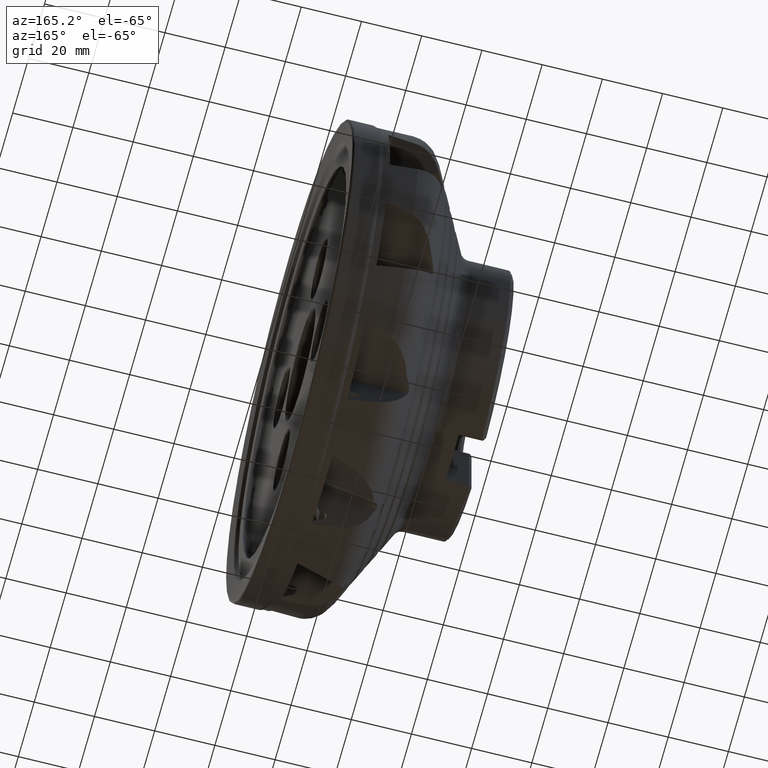
[diagram: clean part render]
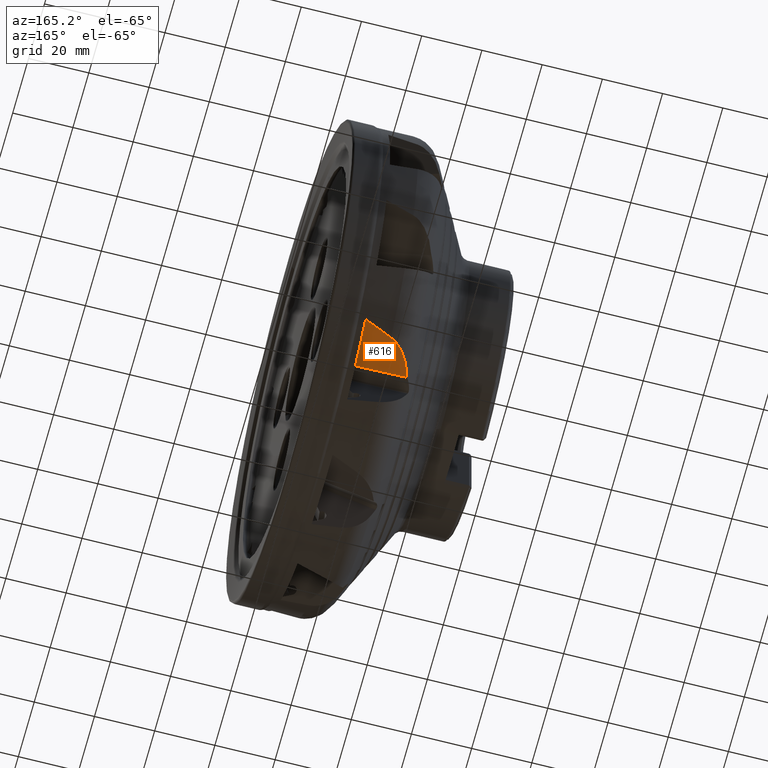
[diagram: same view with one face highlighted and labeled with its STEP entity id]
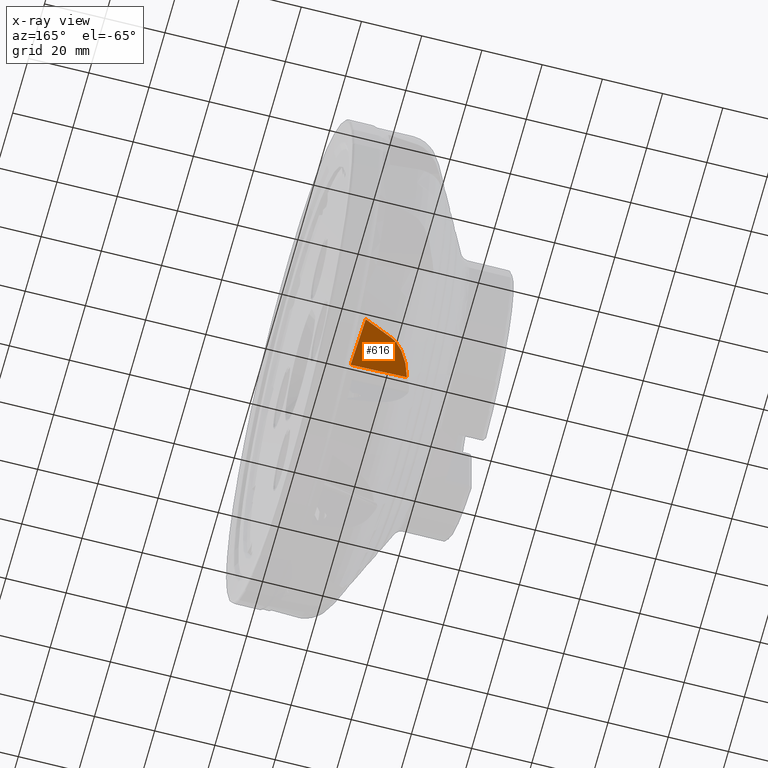
[diagram: x-ray of the same camera — body ghosted, the highlighted face saturated]
A machine part, auxiliary view. The second image highlights one B-rep face of the part: STEP entity #616.
The next image is the same camera in x-ray: the body ghosted, the highlighted face saturated — about 0% of this face is hidden behind the body in this view.
In plain terms, the highlighted planar face has unit normal (-0.2563, 0.036, 0.9659).
Its self-contained STEP definition (entity closure, byte-faithful):
#616 = ADVANCED_FACE ( 'NONE', ( #7125 ), #7867, .F. ) ;
#1782 = VERTEX_POINT ( 'NONE', #12201 ) ;
#1965 = VERTEX_POINT ( 'NONE', #13060 ) ;
#3788 = EDGE_LOOP ( 'NONE', ( #3907, #3908, #3909, #3911, #3910 ) ) ;
#3907 = ORIENTED_EDGE ( 'NONE', *, *, #15705, .F. ) ;
#3908 = ORIENTED_EDGE ( 'NONE', *, *, #15704, .F. ) ;
#3909 = ORIENTED_EDGE ( 'NONE', *, *, #15702, .F. ) ;
#3910 = ORIENTED_EDGE ( 'NONE', *, *, #15610, .T. ) ;
#3911 = ORIENTED_EDGE ( 'NONE', *, *, #15706, .T. ) ;
#5922 = AXIS2_PLACEMENT_3D ( 'NONE', #7856, #7869, #7870 ) ;
#7125 = FACE_OUTER_BOUND ( 'NONE', #3788, .T. ) ;
#7856 = CARTESIAN_POINT ( 'NONE',  ( -37.02339028179429900, 35.51520634780938200, -69.21341853928395000 ) ) ;
#7867 = PLANE ( 'NONE',  #5922 ) ;
#7869 = DIRECTION ( 'NONE',  ( -0.2563002359472111300, 0.03602064909444099800, 0.9659258262890682000 ) ) ;
#7870 = DIRECTION ( 'NONE',  ( 0.9665530749195253600, 0.0000000000000000000, 0.2564666710580740200 ) ) ;
#8809 = VERTEX_POINT ( 'NONE', #18593 ) ;
#8810 = VERTEX_POINT ( 'NONE', #18578 ) ;
#12201 = CARTESIAN_POINT ( 'NONE',  ( -10.75802831989757300, 48.94148868896863300, -62.74481101977718800 ) ) ;
#13060 = CARTESIAN_POINT ( 'NONE',  ( -19.99999999999998200, 45.79110454969491400, -65.07960793611857800 ) ) ;
#14354 = B_SPLINE_CURVE_WITH_KNOTS ( 'NONE', 3,
 ( #19651, #19660, #19661, #19662 ),
 .UNSPECIFIED., .F., .F.,
 ( 4, 4 ),
 ( 0.002953559608949895400, 0.003211324802770624500 ),
 .UNSPECIFIED. ) ;
#14355 = B_SPLINE_CURVE_WITH_KNOTS ( 'NONE', 3,
 ( #19659, #19664, #19665, #19666 ),
 .UNSPECIFIED., .F., .F.,
 ( 4, 4 ),
 ( 8.596981840187151300E-006, 0.01713911704366948000 ),
 .UNSPECIFIED. ) ;
#14356 = B_SPLINE_CURVE_WITH_KNOTS ( 'NONE', 3,
 ( #19663, #19668, #19669, #19670, #19671, #19672, #19673, #19674, #19675, #19676, #19677, #19678, #19679, #19680, #19681, #19682, #19683, #19684 ),
 .UNSPECIFIED., .F., .F.,
 ( 4, 2, 2, 2, 2, 2, 2, 2, 4 ),
 ( 0.002089416736100720100, 0.005765288130436981900, 0.007603223827605115600, 0.009441159524773250200, 0.01127909522194138500, 0.01219806307052545200, 0.01311703091910951900, 0.01495496661627764000, 0.01679290231344576100 ),
 .UNSPECIFIED. ) ;
#14804 =( BOUNDED_CURVE ( )  B_SPLINE_CURVE ( 3, ( #19152, #19160, #19161, #19162 ),
 .UNSPECIFIED., .F., .T. ) 
 B_SPLINE_CURVE_WITH_KNOTS ( ( 4, 4 ),
 ( 3.792015916798626500, 3.841298307651698400 ),
 .UNSPECIFIED. ) 
 CURVE ( )  GEOMETRIC_REPRESENTATION_ITEM ( )  RATIONAL_B_SPLINE_CURVE ( ( 1.000000000000000000, 0.9997976140701623200, 0.9997976140701623200, 1.000000000000000000 ) ) 
 REPRESENTATION_ITEM ( '' )  );
#14962 = VERTEX_POINT ( 'NONE', #18734 ) ;
#15610 = EDGE_CURVE ( 'NONE', #1965, #1782, #14804, .T. ) ;
#15702 = EDGE_CURVE ( 'NONE', #8809, #8810, #20358, .T. ) ;
#15704 = EDGE_CURVE ( 'NONE', #8810, #14962, #14354, .T. ) ;
#15705 = EDGE_CURVE ( 'NONE', #14962, #1782, #14355, .T. ) ;
#15706 = EDGE_CURVE ( 'NONE', #8809, #1965, #14356, .T. ) ;
#18578 = CARTESIAN_POINT ( 'NONE',  ( -10.06744335384230900, 31.72679506636154300, -61.91961150000447100 ) ) ;
#18593 = CARTESIAN_POINT ( 'NONE',  ( -28.31052783251978500, 34.29069338654118600, -66.85587058763346100 ) ) ;
#18734 = CARTESIAN_POINT ( 'NONE',  ( -10.29289730476655300, 31.83421875646366000, -61.98343976733590200 ) ) ;
#19152 = CARTESIAN_POINT ( 'NONE',  ( -19.99999999999998200, 45.79110454969491400, -65.07960793611857800 ) ) ;
#19160 = CARTESIAN_POINT ( 'NONE',  ( -17.01449011499915900, 46.86030564570793900, -64.32730009769032600 ) ) ;
#19161 = CARTESIAN_POINT ( 'NONE',  ( -13.93320928041159800, 47.91064626629564300, -63.54887691701063800 ) ) ;
#19162 = CARTESIAN_POINT ( 'NONE',  ( -10.75802831989757300, 48.94148868896863300, -62.74481101977718800 ) ) ;
#19651 = CARTESIAN_POINT ( 'NONE',  ( -10.06744335384230900, 31.72679506636154300, -61.91961150000447100 ) ) ;
#19655 = CARTESIAN_POINT ( 'NONE',  ( -37.02339028179429900, 35.51520634780938200, -69.21341853928395000 ) ) ;
#19656 = DIRECTION ( 'NONE',  ( 0.9565255025468805100, -0.1344308925420666100, 0.2588190451025212400 ) ) ;
#19659 = CARTESIAN_POINT ( 'NONE',  ( -10.29289730476655300, 31.83421875646366000, -61.98343976733590200 ) ) ;
#19660 = CARTESIAN_POINT ( 'NONE',  ( -10.14258661423842300, 31.76262074258286100, -61.94088611439185100 ) ) ;
#19661 = CARTESIAN_POINT ( 'NONE',  ( -10.21773795928526600, 31.79842858775295500, -61.96216220902937300 ) ) ;
#19662 = CARTESIAN_POINT ( 'NONE',  ( -10.29289730476655300, 31.83421875646366000, -61.98343976733590200 ) ) ;
#19663 = CARTESIAN_POINT ( 'NONE',  ( -28.31052783251978500, 34.29069338654118600, -66.85587058763346100 ) ) ;
#19664 = CARTESIAN_POINT ( 'NONE',  ( -10.42575127797465000, 37.53750597846533300, -62.23137455266860500 ) ) ;
#19665 = CARTESIAN_POINT ( 'NONE',  ( -10.58358431388360900, 43.23982069102987700, -62.48590105453843800 ) ) ;
#19666 = CARTESIAN_POINT ( 'NONE',  ( -10.75802831989757300, 48.94148868896863300, -62.74481101977718800 ) ) ;
#19668 = CARTESIAN_POINT ( 'NONE',  ( -27.97613397878413400, 35.47256487400271400, -66.81121555894159800 ) ) ;
#19669 = CARTESIAN_POINT ( 'NONE',  ( -27.57981821073649800, 36.63066970173210300, -66.74924378469475500 ) ) ;
#19670 = CARTESIAN_POINT ( 'NONE',  ( -26.86361463408460200, 38.32110497536266500, -66.62224379511469900 ) ) ;
#19671 = CARTESIAN_POINT ( 'NONE',  ( -26.60445378575833400, 38.87674343778001400, -66.57419815099470400 ) ) ;
#19672 = CARTESIAN_POINT ( 'NONE',  ( -26.03731898882987000, 39.96928508355203700, -66.46445605679014100 ) ) ;
#19673 = CARTESIAN_POINT ( 'NONE',  ( -25.72817545578804800, 40.50768634656904500, -66.40250513274980900 ) ) ;
#19674 = CARTESIAN_POINT ( 'NONE',  ( -25.06263170923735800, 41.54170690821006700, -66.26446872887908100 ) ) ;
#19675 = CARTESIAN_POINT ( 'NONE',  ( -24.70536138157775600, 42.03954163193606800, -66.18823498775563500 ) ) ;
#19676 = CARTESIAN_POINT ( 'NONE',  ( -24.12494832381818500, 42.75145652474694900, -66.06077554546642700 ) ) ;
#19677 = CARTESIAN_POINT ( 'NONE',  ( -23.92402373902214000, 42.98292739559309400, -66.01609376317854600 ) ) ;
#19678 = CARTESIAN_POINT ( 'NONE',  ( -23.50532821155269000, 43.43268306879945600, -65.92176843434073400 ) ) ;
#19679 = CARTESIAN_POINT ( 'NONE',  ( -23.28771910892752600, 43.65065358179792600, -65.87215611041153800 ) ) ;
#19680 = CARTESIAN_POINT ( 'NONE',  ( -22.61602784773973300, 44.27317128133220300, -65.71714303068952700 ) ) ;
#19681 = CARTESIAN_POINT ( 'NONE',  ( -22.14069056872199700, 44.64977849746300400, -65.60506049035198800 ) ) ;
#19682 = CARTESIAN_POINT ( 'NONE',  ( -21.12049365765876600, 45.30605480214345000, -65.35883329146662400 ) ) ;
#19683 = CARTESIAN_POINT ( 'NONE',  ( -20.57296615807406300, 45.58590809488879400, -65.22398760608344000 ) ) ;
#19684 = CARTESIAN_POINT ( 'NONE',  ( -19.99999999999998200, 45.79110454969491400, -65.07960793611857800 ) ) ;
#20358 = LINE ( 'NONE', #19655, #20359 ) ;
#20359 = VECTOR ( 'NONE', #19656, 1000.000000000000200 ) ;